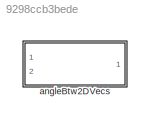
MODEL slx_9298ccb3bede
KIND library
CONFIG AbsTol = auto
CONFIG EnableMultiTasking = off
CONFIG FixedStep = auto
CONFIG MaxStep = auto
CONFIG MinStep = auto
CONFIG RelTol = 1e-3
CONFIG SampleTimeConstraint = Unconstrained
CONFIG Solver = VariableStepAuto
CONFIG SolverName = VariableStepAuto
CONFIG StartTime = 0.0
CONFIG StopTime = 10.0
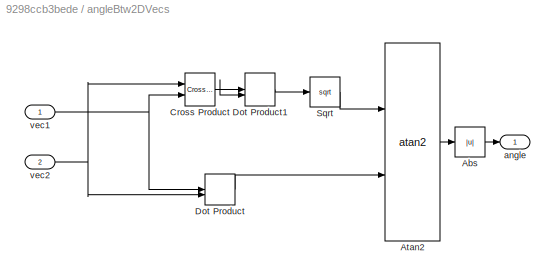
BLOCK [SubSystem] angleBtw2DVecs
  Ports = [2, 1]
  RequestExecContextInheritance = off
BLOCK [Abs] angleBtw2DVecs/Abs
  SaturateOnIntegerOverflow = off
BLOCK [Trigonometry] angleBtw2DVecs/Atan2
  Operator = atan2
  Ports = [2, 1]
BLOCK [Reference] angleBtw2DVecs/Cross Product  REF=vrlib/Utilities/Cross Product
  Ports = [2, 1]
  SourceBlock = vrlib/Utilities/Cross Product
  SourceProductBaseCode = SL
  SourceType = Cross Product
BLOCK [DotProduct] angleBtw2DVecs/Dot Product
  OutDataTypeStr = Inherit: Inherit via internal rule
BLOCK [DotProduct] angleBtw2DVecs/Dot Product1
  OutDataTypeStr = Inherit: Inherit via internal rule
BLOCK [Sqrt] angleBtw2DVecs/Sqrt
BLOCK [Outport] angleBtw2DVecs/angle
  VectorParamsAs1DForOutWhenUnconnected = off
BLOCK [Inport] angleBtw2DVecs/vec1
BLOCK [Inport] angleBtw2DVecs/vec2
  Port = 2
LINE angleBtw2DVecs/Abs:1 -> angleBtw2DVecs/angle:1
LINE angleBtw2DVecs/Atan2:1 -> angleBtw2DVecs/Abs:1
NET angleBtw2DVecs/Cross Product:1 -> angleBtw2DVecs/Dot Product1:1, angleBtw2DVecs/Dot Product1:2
LINE angleBtw2DVecs/Dot Product1:1 -> angleBtw2DVecs/Sqrt:1
LINE angleBtw2DVecs/Dot Product:1 -> angleBtw2DVecs/Atan2:2
LINE angleBtw2DVecs/Sqrt:1 -> angleBtw2DVecs/Atan2:1
NET angleBtw2DVecs/vec1:1 -> angleBtw2DVecs/Cross Product:2, angleBtw2DVecs/Dot Product:1
NET angleBtw2DVecs/vec2:1 -> angleBtw2DVecs/Cross Product:1, angleBtw2DVecs/Dot Product:2
note: NET lines group one-source signal fan-out (src -> all destinations, sorted); 1:1 wires keep LINE
